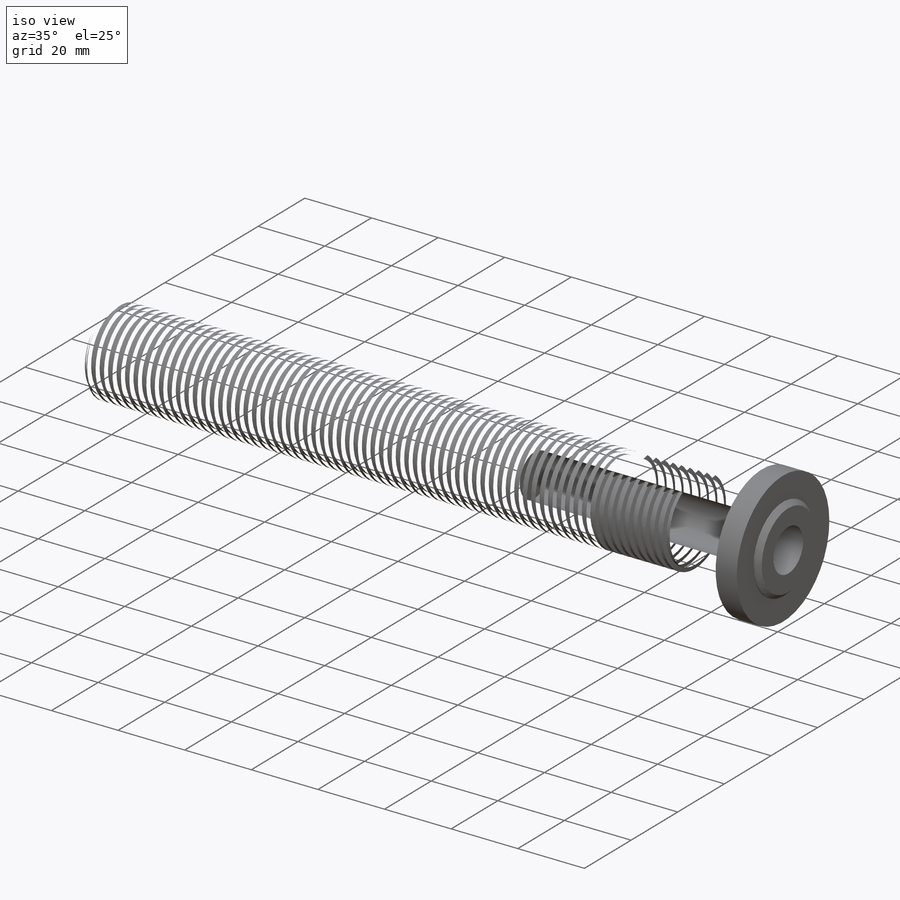
[diagram: iso view]
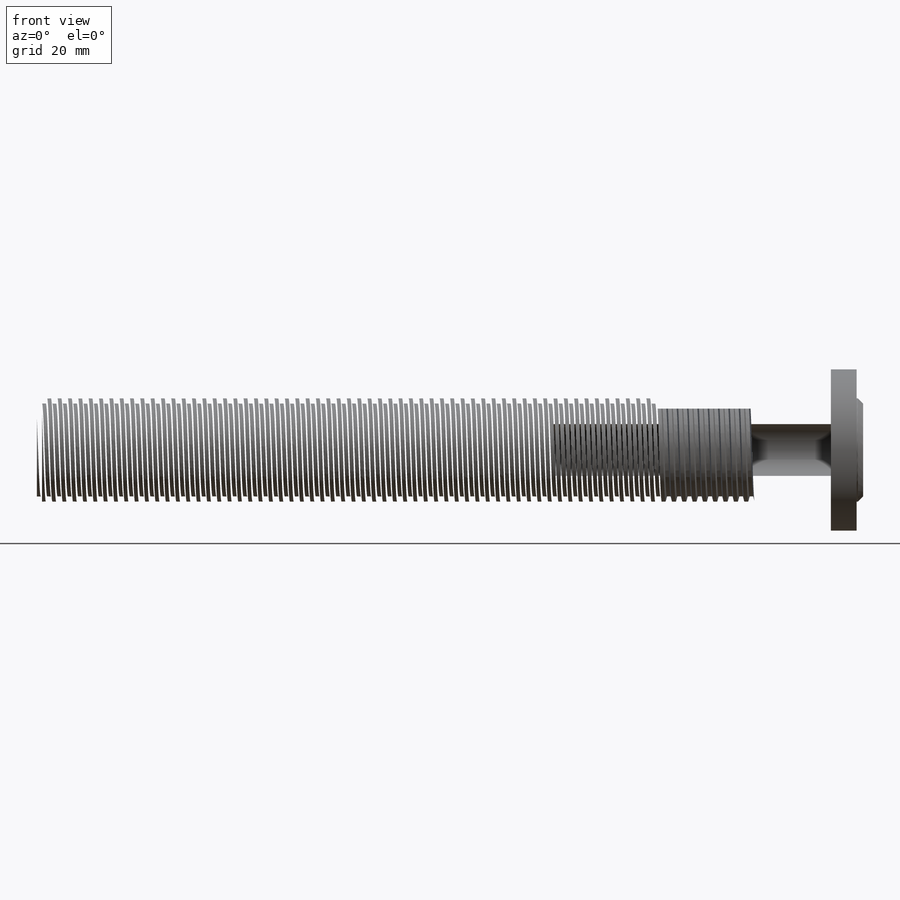
[diagram: front view]
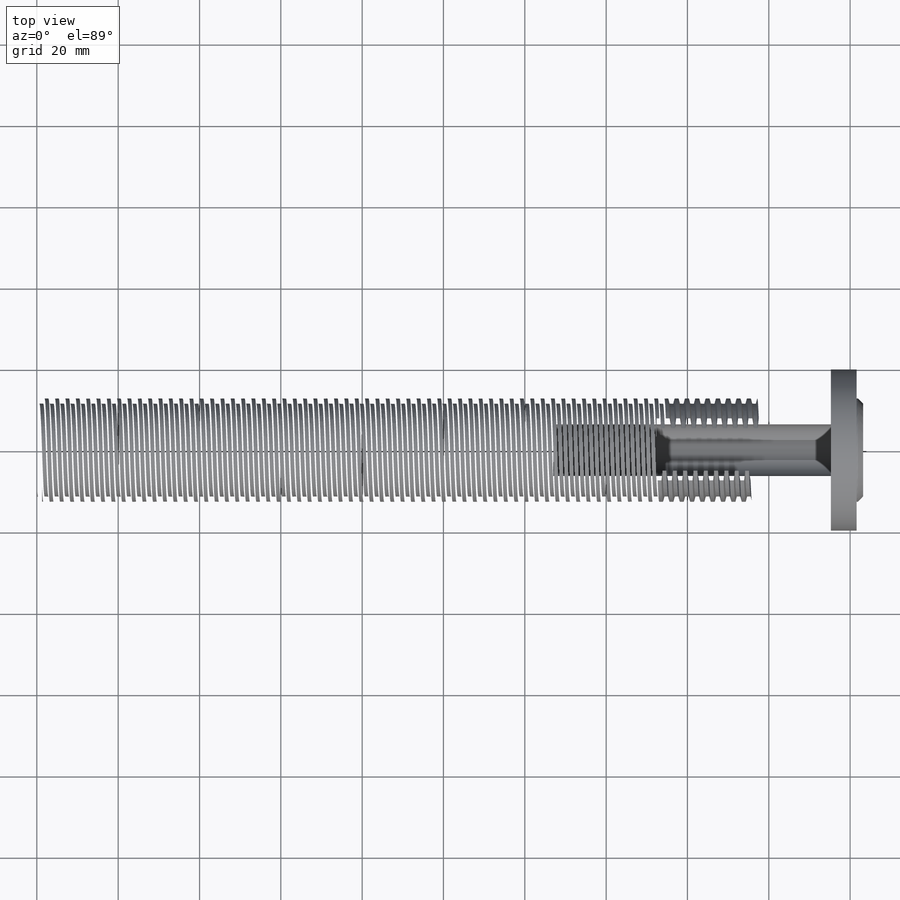
[diagram: top view]
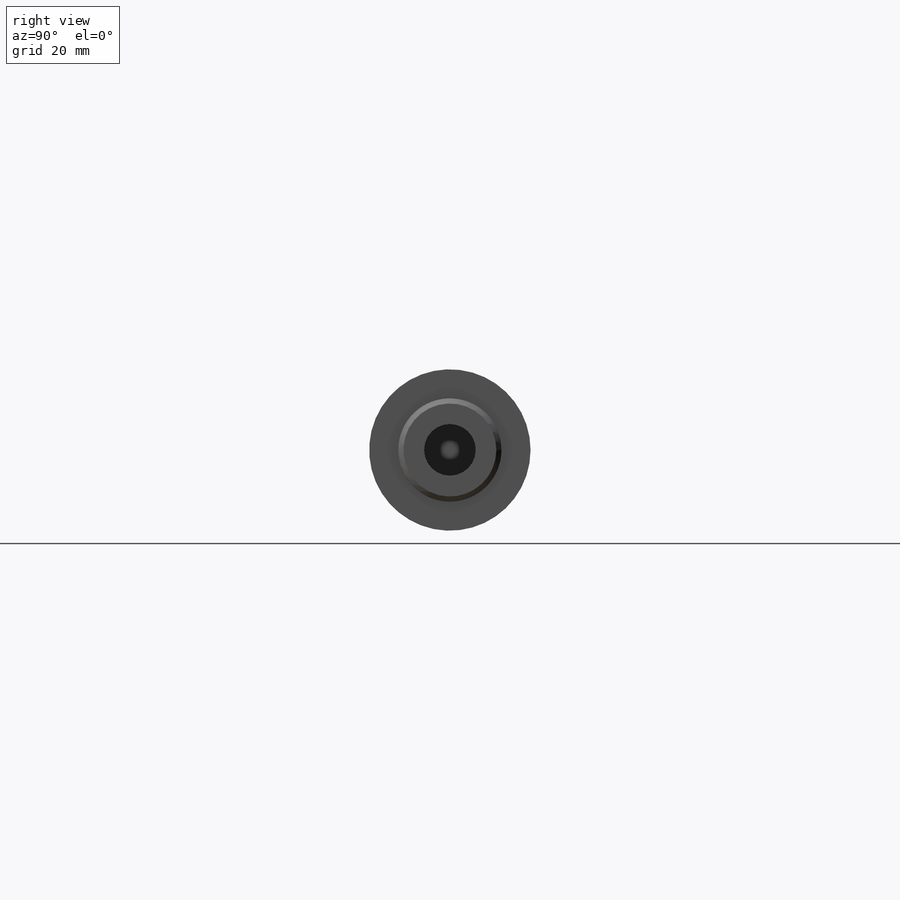
[diagram: right view]
SOLIDWORKS PART (.sldprt)
format: sldprt  version: not decoded by parser v0  size: 2,202,624 bytes
history: native  units: mm
features: sketch x8, cut_extrude x4, plane x3, extrude x2, material x1, helix x1, sweep x1, mirror x1 (+14 scaffold rows collapsed)
feature tree (35):
  scaffold x14  (default folders/planes/origin — collapsed)
  material  "Plain Carbon Steel"
  sketch  "Sketch1"  dims[Diameter=25.4mm]
  extrude  "Boss-Extrude1"  Depth=203.2mm Length=203.2mm
  sketch  "Sketch3"  dims[D1=0.0mm]
  helix  "Helix/Spiral1"  Pitch=177.8mm
  sketch  "Sketch2"  dims[c1.D1=~4.006635mm c2.D1=29.0deg c2.D2=1.27mm]
  plane  "Plane1"
  sweep  "Cut-Sweep4"
  sketch  "Sketch8"  dims[D1=12.7mm]
  cut_extrude  "Cut-Extrude2"  Depth=76.2mm
  sketch  "Sketch7"  dims[D2=50.8mm D1=0.0mm]
  cut_extrude  "Cut-Extrude1"  Depth=12.7mm
  plane  "Plane2"
  mirror  "Mirror1"
  plane  "Plane3"  Offset=1.5875mm
  sketch  "Sketch9"  dims[D1=39.6875mm]
  extrude  "Boss-Extrude2"  Depth=6.35mm
  sketch  "Sketch10"  dims[D1=25.4mm D2=25.4mm D3=2.54mm]
  cut_extrude  "Cut-Extrude3"  [1 undecoded]
  sketch  "Sketch11"  dims[c1.D1=6.35mm c1.D2=6.35mm c1.D3=6.35mm c1.D4=6.35mm c2.D2=12.7mm c2.D3=6.35mm c2.D4=12.7mm]
  cut_extrude  "Cut-Extrude4"  Depth=12.7mm
decode coverage: 14 of 17 modeling features carry decoded parameters
note: ~ marks probable driven/reference dimensions
note: 1 parameter value undecoded
note: suppression state not decoded; provenance and decode notes live in map.json
